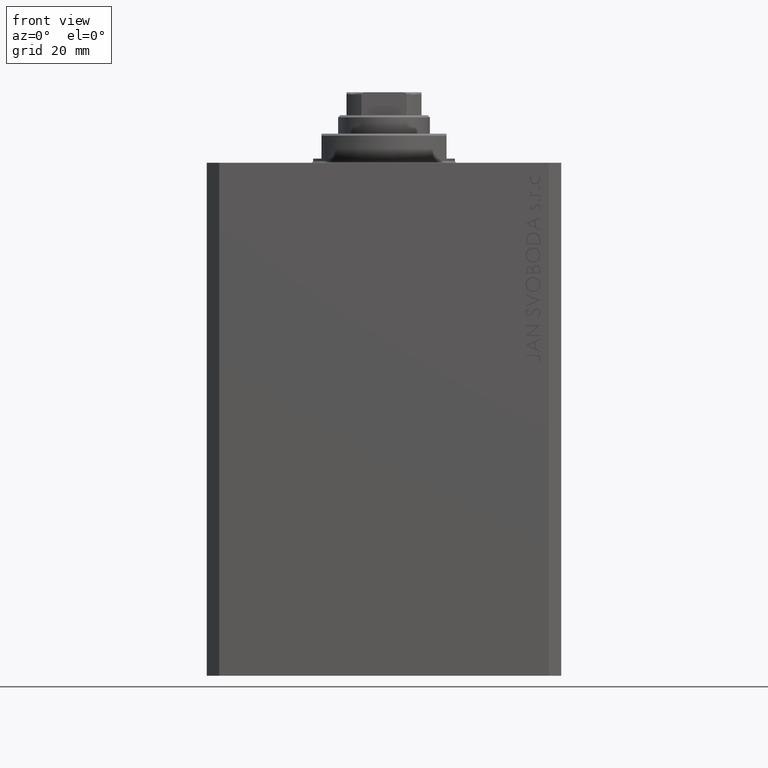
[diagram: clean part render]
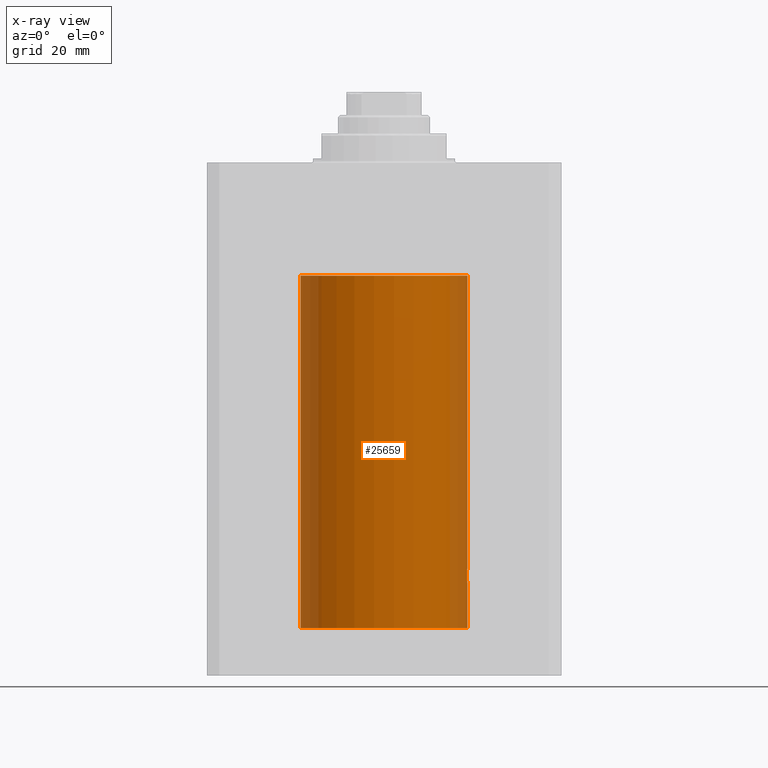
[diagram: x-ray — body ghosted, one internal face saturated and labeled with its STEP entity id]
A machine part, front view, then the same camera in x-ray: the body is ghosted and one INTERNAL B-rep face — a face not visible from any outside direction — is saturated and labeled: STEP entity #25659.
In plain terms, the highlighted cylindrical surface (partial cylindrical patch) has radius 20 mm, axis along (0, 0, 1).
Its self-contained STEP definition (entity closure, byte-faithful):
#138 = EDGE_CURVE ( 'NONE', #890, #30775, #18910, .T. ) ;
#197 = CARTESIAN_POINT ( 'NONE',  ( 19.90607912840593485, -1.936147476084615127, -98.48198538155280346 ) ) ;
#890 = VERTEX_POINT ( 'NONE', #23718 ) ;
#1195 = ORIENTED_EDGE ( 'NONE', *, *, #17915, .T. ) ;
#1295 = DIRECTION ( 'NONE',  ( 0.000000000000000000, 0.000000000000000000, 1.000000000000000000 ) ) ;
#1968 = CARTESIAN_POINT ( 'NONE',  ( 19.89974874213243083, -1.999999999999655165, -99.13207361806611573 ) ) ;
#2183 = CARTESIAN_POINT ( 'NONE',  ( 19.96296989966237945, -1.230425635331405365, -100.5981187666770893 ) ) ;
#2855 = CARTESIAN_POINT ( 'NONE',  ( 19.92464121718639802, -1.736076547215872790, -100.0015422135783894 ) ) ;
#3236 = ORIENTED_EDGE ( 'NONE', *, *, #30044, .T. ) ;
#3643 = EDGE_CURVE ( 'NONE', #16234, #12282, #41706, .T. ) ;
#3758 = CARTESIAN_POINT ( 'NONE',  ( 20.00000000000000000, -0.2612062508298597097, -97.00000000000005684 ) ) ;
#3979 = CARTESIAN_POINT ( 'NONE',  ( 20.00000000000000000, -1.553109350199128042E-23, -97.00000000000000000 ) ) ;
#4198 = CARTESIAN_POINT ( 'NONE',  ( 19.91915476385079842, -1.797169352086260830, -98.11266282055724730 ) ) ;
#4974 = CARTESIAN_POINT ( 'NONE',  ( 20.00000000000000000, 0.000000000000000000, -111.6000000000000085 ) ) ;
#5490 = DIRECTION ( 'NONE',  ( -0.000000000000000000, -0.000000000000000000, 1.000000000000000000 ) ) ;
#5761 = CARTESIAN_POINT ( 'NONE',  ( 19.93674030556024590, -1.591123942389839119, -100.2187588700503227 ) ) ;
#6698 = CARTESIAN_POINT ( 'NONE',  ( -20.00000000000000000, 2.449293598294706513E-15, -27.10000000000000142 ) ) ;
#6979 = CARTESIAN_POINT ( 'NONE',  ( 0.000000000000000000, 0.000000000000000000, -111.6000000000000085 ) ) ;
#7576 = CARTESIAN_POINT ( 'NONE',  ( 19.93679035661676835, -1.590502522866548585, -97.78041502771402804 ) ) ;
#7657 = VERTEX_POINT ( 'NONE', #10069 ) ;
#8413 = CARTESIAN_POINT ( 'NONE',  ( 20.00000000000000000, 0.000000000000000000, -111.6000000000000085 ) ) ;
#9646 = VECTOR ( 'NONE', #10690, 1000.000000000000000 ) ;
#10069 = CARTESIAN_POINT ( 'NONE',  ( 20.00000000000000000, 0.000000000000000000, -111.6000000000000085 ) ) ;
#10351 = DIRECTION ( 'NONE',  ( -0.000000000000000000, -0.000000000000000000, 1.000000000000000000 ) ) ;
#10690 = DIRECTION ( 'NONE',  ( -0.000000000000000000, -0.000000000000000000, 1.000000000000000000 ) ) ;
#12281 = DIRECTION ( 'NONE',  ( 1.000000000000000000, 0.000000000000000000, 0.000000000000000000 ) ) ;
#12282 = VERTEX_POINT ( 'NONE', #28570 ) ;
#12518 = CARTESIAN_POINT ( 'NONE',  ( 19.99450726301181192, -0.5268413099739941430, -100.9468459871092705 ) ) ;
#13883 = CARTESIAN_POINT ( 'NONE',  ( 19.90106531167246828, -1.987021080928412342, -98.73779127013027335 ) ) ;
#13904 = CARTESIAN_POINT ( 'NONE',  ( -20.00000000000000000, 2.449293598294706513E-15, -111.6000000000000085 ) ) ;
#14636 = CIRCLE ( 'NONE', #40439, 20.00000000000000000 ) ;
#15797 = VERTEX_POINT ( 'NONE', #13904 ) ;
#16234 = VERTEX_POINT ( 'NONE', #43781 ) ;
#16544 = CARTESIAN_POINT ( 'NONE',  ( 19.97604812261521090, -1.007662572237620457, -100.7471082404733096 ) ) ;
#17251 = CARTESIAN_POINT ( 'NONE',  ( 19.90983652367462042, -1.897617924364799924, -98.35484020333801425 ) ) ;
#17425 = LINE ( 'NONE', #31088, #9646 ) ;
#17907 = CARTESIAN_POINT ( 'NONE',  ( 19.89974874213243439, -1.999999999999655609, -98.86779873849403089 ) ) ;
#17915 = EDGE_CURVE ( 'NONE', #890, #16234, #34868, .T. ) ;
#18864 = VECTOR ( 'NONE', #5490, 1000.000000000000000 ) ;
#18910 = LINE ( 'NONE', #4974, #39656 ) ;
#19148 = CARTESIAN_POINT ( 'NONE',  ( 20.00000000000000000, 0.000000000000000000, -27.10000000000000142 ) ) ;
#19689 = EDGE_CURVE ( 'NONE', #42280, #30775, #14636, .T. ) ;
#22210 = CARTESIAN_POINT ( 'NONE',  ( 0.000000000000000000, 0.000000000000000000, -27.10000000000000142 ) ) ;
#22607 = CARTESIAN_POINT ( 'NONE',  ( 19.99999999999999645, -0.2642773949967771041, -100.9999999999999289 ) ) ;
#23718 = CARTESIAN_POINT ( 'NONE',  ( 20.00000000000000000, -1.553109350199128042E-23, -97.00000000000000000 ) ) ;
#24623 = CARTESIAN_POINT ( 'NONE',  ( 19.94343050116685845, -1.506032346525473020, -97.67754857126976731 ) ) ;
#25659 = ADVANCED_FACE ( 'NONE', ( #40859 ), #30533, .F. ) ;
#25966 = CARTESIAN_POINT ( 'NONE',  ( 19.90106527362734568, -1.987020983172499422, -99.26214585379852906 ) ) ;
#26287 = DIRECTION ( 'NONE',  ( -0.000000000000000000, -0.000000000000000000, 1.000000000000000000 ) ) ;
#26413 = CARTESIAN_POINT ( 'NONE',  ( 20.00000000000000000, 0.000000000000000000, -101.0000000000000000 ) ) ;
#27567 = ORIENTED_EDGE ( 'NONE', *, *, #19689, .T. ) ;
#27568 = EDGE_LOOP ( 'NONE', ( #41421, #3236, #27567, #42877, #1195, #29966, #35031 ) ) ;
#28059 = DIRECTION ( 'NONE',  ( 1.000000000000000000, 0.000000000000000000, 0.000000000000000000 ) ) ;
#28210 = CARTESIAN_POINT ( 'NONE',  ( 19.89974874213243439, -1.999999999999655609, -99.00000000000000000 ) ) ;
#28570 = CARTESIAN_POINT ( 'NONE',  ( 20.00000000000000000, 0.000000000000000000, -101.0000000000000000 ) ) ;
#28711 = DIRECTION ( 'NONE',  ( 0.000000000000000000, 0.000000000000000000, 1.000000000000000000 ) ) ;
#29333 = CARTESIAN_POINT ( 'NONE',  ( 19.90981966846453588, -1.897793276286218411, -99.64463361322839319 ) ) ;
#29966 = ORIENTED_EDGE ( 'NONE', *, *, #3643, .T. ) ;
#30044 = EDGE_CURVE ( 'NONE', #15797, #42280, #17425, .T. ) ;
#30533 = CYLINDRICAL_SURFACE ( 'NONE', #40312, 20.00000000000000000 ) ;
#30775 = VERTEX_POINT ( 'NONE', #19148 ) ;
#31088 = CARTESIAN_POINT ( 'NONE',  ( -20.00000000000000000, 2.449293598294706513E-15, -111.6000000000000085 ) ) ;
#31924 = AXIS2_PLACEMENT_3D ( 'NONE', #32009, #1295, #12281 ) ;
#32009 = CARTESIAN_POINT ( 'NONE',  ( 0.000000000000000000, 0.000000000000000000, -111.6000000000000085 ) ) ;
#32685 = CARTESIAN_POINT ( 'NONE',  ( 19.89974874213243439, -1.999999999999655609, -99.00000000000000000 ) ) ;
#34868 = B_SPLINE_CURVE_WITH_KNOTS ( 'NONE', 3,
 ( #3979, #3758, #37640, #38291, #41665, #24623, #7576, #34926, #4198, #17251, #197, #13883, #17907, #28210 ),
 .UNSPECIFIED., .F., .F.,
 ( 4, 2, 2, 2, 2, 2, 4 ),
 ( 0.006256819553330524898, 0.007039116231737640138, 0.007821412910144754510, 0.008212561249348312997, 0.008603709588551871484, 0.008994857927755429972, 0.009386006266958986724 ),
 .UNSPECIFIED. ) ;
#34926 = CARTESIAN_POINT ( 'NONE',  ( 19.92467362751852988, -1.735709893904968437, -97.99780393930582534 ) ) ;
#35031 = ORIENTED_EDGE ( 'NONE', *, *, #35508, .F. ) ;
#35410 = CIRCLE ( 'NONE', #31924, 20.00000000000000000 ) ;
#35508 = EDGE_CURVE ( 'NONE', #7657, #12282, #36646, .T. ) ;
#36646 = LINE ( 'NONE', #8413, #18864 ) ;
#37640 = CARTESIAN_POINT ( 'NONE',  ( 19.99457156948952985, -0.5245703965536948621, -97.05250028761906833 ) ) ;
#38291 = CARTESIAN_POINT ( 'NONE',  ( 19.97612863609106171, -1.006156579624605252, -97.25197878504231142 ) ) ;
#39656 = VECTOR ( 'NONE', #26287, 1000.000000000000000 ) ;
#40312 = AXIS2_PLACEMENT_3D ( 'NONE', #6979, #10351, #41730 ) ;
#40439 = AXIS2_PLACEMENT_3D ( 'NONE', #22210, #28711, #28059 ) ;
#40542 = CARTESIAN_POINT ( 'NONE',  ( 19.91912874598169125, -1.797456133345314511, -99.88674870370387282 ) ) ;
#40859 = FACE_OUTER_BOUND ( 'NONE', #27568, .T. ) ;
#41421 = ORIENTED_EDGE ( 'NONE', *, *, #43260, .F. ) ;
#41665 = CARTESIAN_POINT ( 'NONE',  ( 19.96304361591165133, -1.229269670911803614, -97.40095624928315488 ) ) ;
#41706 = B_SPLINE_CURVE_WITH_KNOTS ( 'NONE', 3,
 ( #32685, #1968, #25966, #43442, #29333, #40542, #2855, #5761, #43008, #2183, #16544, #12518, #22607, #26413 ),
 .UNSPECIFIED., .F., .F.,
 ( 4, 2, 2, 2, 2, 2, 4 ),
 ( 0.009386006266958986724, 0.009776776943204319378, 0.01016754761944965377, 0.01055831829569498642, 0.01094908897194031908, 0.01173063032443095663, 0.01251217167692159418 ),
 .UNSPECIFIED. ) ;
#41730 = DIRECTION ( 'NONE',  ( 1.000000000000000000, 0.000000000000000000, 0.000000000000000000 ) ) ;
#42280 = VERTEX_POINT ( 'NONE', #6698 ) ;
#42877 = ORIENTED_EDGE ( 'NONE', *, *, #138, .F. ) ;
#43008 = CARTESIAN_POINT ( 'NONE',  ( 19.94337316053471909, -1.506783194222099720, -100.3215850766146531 ) ) ;
#43260 = EDGE_CURVE ( 'NONE', #15797, #7657, #35410, .T. ) ;
#43442 = CARTESIAN_POINT ( 'NONE',  ( 19.90607187811043843, -1.936221525612430661, -99.51770555336665325 ) ) ;
#43781 = CARTESIAN_POINT ( 'NONE',  ( 19.89974874213243439, -1.999999999999655609, -99.00000000000000000 ) ) ;